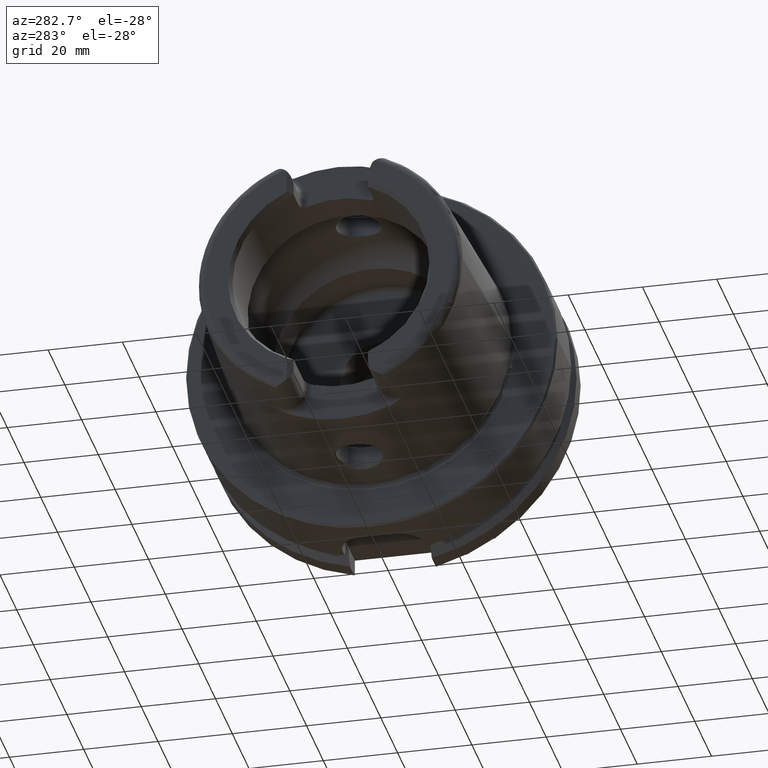
[diagram: clean part render]
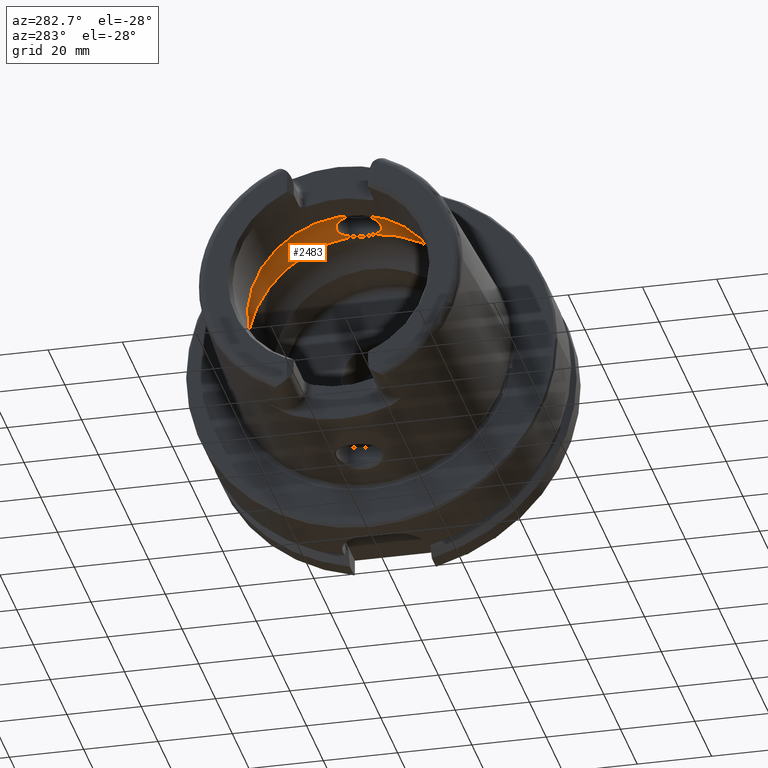
[diagram: same view with one face highlighted and labeled with its STEP entity id]
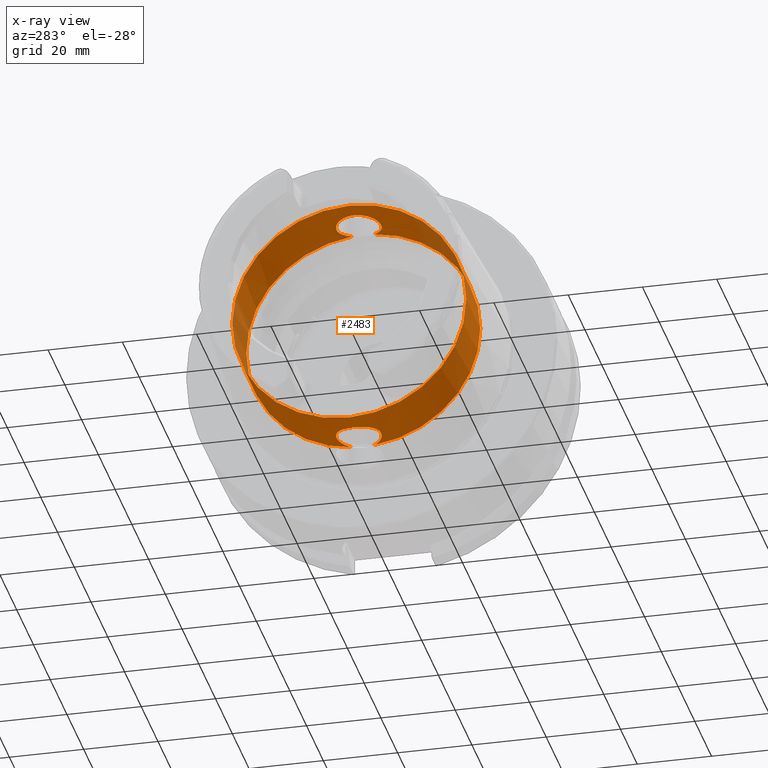
[diagram: x-ray of the same camera — body ghosted, the highlighted face saturated]
A machine part, auxiliary view. The second image highlights one B-rep face of the part: STEP entity #2483.
The next image is the same camera in x-ray: the body ghosted, the highlighted face saturated — about 12% of this face is hidden behind the body in this view.
In plain terms, the highlighted cylindrical surface (bore or boss wall) has radius 31.5 mm, axis along (-1, 0, 0).
Its self-contained STEP definition (entity closure, byte-faithful):
#177=CIRCLE('',#2710,31.5);
#178=CIRCLE('',#2711,31.5);
#179=CIRCLE('',#2712,31.5);
#180=CIRCLE('',#2713,31.5);
#181=CIRCLE('',#2714,31.5);
#469=FACE_OUTER_BOUND('',#613,.T.);
#613=EDGE_LOOP('',(#1940,#1941,#1942,#1943,#1944,#1945,#1946,#1947,#1948));
#746=B_SPLINE_CURVE_WITH_KNOTS('',3,(#4621,#4622,#4623,#4624,#4625,#4626,
#4627,#4628,#4629,#4630,#4631,#4632,#4633,#4634,#4635,#4636,#4637,#4638,
#4639,#4640,#4641,#4642,#4643,#4644,#4645,#4646,#4647,#4648,#4649,#4650,
#4651),.UNSPECIFIED.,.F.,.F.,(4,2,2,2,2,2,2,2,2,2,2,3,2,2,4),(-2.42966289251045,
-2.26609494287567,-2.03948128472637,-1.81286762657707,-1.58625396842777,
-1.35964031027847,-1.1330370617835,-0.906433813288535,-0.679830564793567,
-0.453227316298599,-0.226613658149299,0.,0.2266136581493,0.453227316298599,
0.616795265988555),.UNSPECIFIED.);
#751=B_SPLINE_CURVE_WITH_KNOTS('',3,(#4813,#4814,#4815,#4816,#4817,#4818,
#4819,#4820,#4821,#4822,#4823,#4824,#4825,#4826,#4827,#4828,#4829,#4830,
#4831,#4832,#4833,#4834,#4835,#4836,#4837,#4838,#4839,#4840,#4841,#4842,
#4843),.UNSPECIFIED.,.F.,.F.,(4,2,2,3,2,2,2,2,2,2,2,2,2,2,4),(-0.616795265933374,
-0.453227316298598,-0.226613658149299,0.,0.2266136581493,0.453227316298599,
0.679830564793567,0.906433813288535,1.1330370617835,1.35964031027847,1.58625396842777,
1.81286762657707,2.03948128472637,2.26609494287567,2.42966289256562),
 .UNSPECIFIED.);
#837=LINE('',#4859,#957);
#957=VECTOR('',#3180,31.5);
#1157=VERTEX_POINT('',#4609);
#1158=VERTEX_POINT('',#4620);
#1161=VERTEX_POINT('',#4800);
#1163=VERTEX_POINT('',#4812);
#1164=VERTEX_POINT('',#4856);
#1165=VERTEX_POINT('',#4858);
#1166=VERTEX_POINT('',#4860);
#1445=EDGE_CURVE('',#1158,#1157,#746,.T.);
#1451=EDGE_CURVE('',#1163,#1161,#751,.T.);
#1454=EDGE_CURVE('',#1164,#1161,#177,.T.);
#1455=EDGE_CURVE('',#1164,#1165,#837,.T.);
#1456=EDGE_CURVE('',#1165,#1166,#178,.T.);
#1457=EDGE_CURVE('',#1166,#1165,#179,.T.);
#1458=EDGE_CURVE('',#1158,#1164,#180,.T.);
#1459=EDGE_CURVE('',#1163,#1157,#181,.T.);
#1940=ORIENTED_EDGE('',*,*,#1451,.T.);
#1941=ORIENTED_EDGE('',*,*,#1454,.F.);
#1942=ORIENTED_EDGE('',*,*,#1455,.T.);
#1943=ORIENTED_EDGE('',*,*,#1456,.T.);
#1944=ORIENTED_EDGE('',*,*,#1457,.T.);
#1945=ORIENTED_EDGE('',*,*,#1455,.F.);
#1946=ORIENTED_EDGE('',*,*,#1458,.F.);
#1947=ORIENTED_EDGE('',*,*,#1445,.T.);
#1948=ORIENTED_EDGE('',*,*,#1459,.F.);
#2410=CYLINDRICAL_SURFACE('',#2709,31.5);
#2483=ADVANCED_FACE('',(#469),#2410,.F.);
#2709=AXIS2_PLACEMENT_3D('',#4855,#3176,#3177);
#2710=AXIS2_PLACEMENT_3D('',#4857,#3178,#3179);
#2711=AXIS2_PLACEMENT_3D('',#4861,#3181,#3182);
#2712=AXIS2_PLACEMENT_3D('',#4862,#3183,#3184);
#2713=AXIS2_PLACEMENT_3D('',#4863,#3185,#3186);
#2714=AXIS2_PLACEMENT_3D('',#4864,#3187,#3188);
#3176=DIRECTION('center_axis',(-1.,0.,0.));
#3177=DIRECTION('ref_axis',(0.,1.,0.));
#3178=DIRECTION('center_axis',(-1.,0.,0.));
#3179=DIRECTION('ref_axis',(0.,0.,1.));
#3180=DIRECTION('',(-1.,0.,0.));
#3181=DIRECTION('center_axis',(-1.,0.,0.));
#3182=DIRECTION('ref_axis',(0.,0.,1.));
#3183=DIRECTION('center_axis',(-1.,0.,0.));
#3184=DIRECTION('ref_axis',(0.,0.,1.));
#3185=DIRECTION('center_axis',(-1.,0.,0.));
#3186=DIRECTION('ref_axis',(0.,0.,1.));
#3187=DIRECTION('center_axis',(-1.,0.,0.));
#3188=DIRECTION('ref_axis',(0.,0.,1.));
#4609=CARTESIAN_POINT('',(-9.74679434480896,2.89893607109041,-31.3663222207471));
#4620=CARTESIAN_POINT('',(-9.74679434480896,-2.89893607109041,-31.3663222207471));
#4621=CARTESIAN_POINT('Ctrl Pts',(-9.74679434480898,-2.8989360710904,-31.3663222207471));
#4622=CARTESIAN_POINT('Ctrl Pts',(-10.0245557799842,-3.40227174537722,-31.3198029657389));
#4623=CARTESIAN_POINT('Ctrl Pts',(-10.3735944692601,-3.85887584349869,-31.2651415110221));
#4624=CARTESIAN_POINT('Ctrl Pts',(-11.289042660848,-4.77432403508655,-31.140708727458));
#4625=CARTESIAN_POINT('Ctrl Pts',(-11.9624834305428,-5.23577180141274,-31.0633803744766));
#4626=CARTESIAN_POINT('Ctrl Pts',(-13.4401908644727,-5.84865855662958,-30.9538382316308));
#4627=CARTESIAN_POINT('Ctrl Pts',(-14.2446211395023,-6.00000000000001,-30.9232921921325));
#4628=CARTESIAN_POINT('Ctrl Pts',(-15.7553788604977,-6.00000000000001,-30.9232921921325));
#4629=CARTESIAN_POINT('Ctrl Pts',(-16.5598091355273,-5.84865855662958,-30.9538382316308));
#4630=CARTESIAN_POINT('Ctrl Pts',(-18.0375165694572,-5.23577180141275,-31.0633803744766));
#4631=CARTESIAN_POINT('Ctrl Pts',(-18.710957339152,-4.77432403508655,-31.140708727458));
#4632=CARTESIAN_POINT('Ctrl Pts',(-19.7742996118461,-3.71098176239249,-31.2852440928545));
#4633=CARTESIAN_POINT('Ctrl Pts',(-20.2357665181958,-3.03753058698362,-31.3619556484746));
#4634=CARTESIAN_POINT('Ctrl Pts',(-20.8486671603361,-1.55978711209124,-31.4700797313679));
#4635=CARTESIAN_POINT('Ctrl Pts',(-21.,-0.755344161649895,-31.5));
#4636=CARTESIAN_POINT('Ctrl Pts',(-21.,0.755344161649892,-31.5));
#4637=CARTESIAN_POINT('Ctrl Pts',(-20.8486671603361,1.55978711209124,-31.4700797313679));
#4638=CARTESIAN_POINT('Ctrl Pts',(-20.2357665181958,3.03753058698362,-31.3619556484746));
#4639=CARTESIAN_POINT('Ctrl Pts',(-19.7742996118461,3.71098176239249,-31.2852440928545));
#4640=CARTESIAN_POINT('Ctrl Pts',(-18.710957339152,4.77432403508655,-31.140708727458));
#4641=CARTESIAN_POINT('Ctrl Pts',(-18.0375165694572,5.23577180141274,-31.0633803744766));
#4642=CARTESIAN_POINT('Ctrl Pts',(-16.5598091355273,5.84865855662958,-30.9538382316308));
#4643=CARTESIAN_POINT('Ctrl Pts',(-15.7553788604977,6.00000000000001,-30.9232921921325));
#4644=CARTESIAN_POINT('Ctrl Pts',(-15.,6.00000000000001,-30.9232921921325));
#4645=CARTESIAN_POINT('Ctrl Pts',(-14.2446211395023,6.00000000000001,-30.9232921921325));
#4646=CARTESIAN_POINT('Ctrl Pts',(-13.4401908644727,5.84865855662958,-30.9538382316308));
#4647=CARTESIAN_POINT('Ctrl Pts',(-11.9624834305428,5.23577180141274,-31.0633803744766));
#4648=CARTESIAN_POINT('Ctrl Pts',(-11.289042660848,4.77432403508655,-31.140708727458));
#4649=CARTESIAN_POINT('Ctrl Pts',(-10.3735944691306,3.85887584336922,-31.2651415110397));
#4650=CARTESIAN_POINT('Ctrl Pts',(-10.0245557801354,3.40227174565105,-31.3198029657135));
#4651=CARTESIAN_POINT('Ctrl Pts',(-9.74679434480898,2.8989360710904,-31.3663222207471));
#4800=CARTESIAN_POINT('',(-9.74679434480896,-2.89893607109042,31.3663222207471));
#4812=CARTESIAN_POINT('',(-9.74679434480896,2.89893607109042,31.3663222207471));
#4813=CARTESIAN_POINT('Ctrl Pts',(-9.74679434480897,2.89893607109041,31.3663222207471));
#4814=CARTESIAN_POINT('Ctrl Pts',(-10.0245557799842,3.40227174537723,31.3198029657389));
#4815=CARTESIAN_POINT('Ctrl Pts',(-10.3735944692601,3.85887584349869,31.2651415110221));
#4816=CARTESIAN_POINT('Ctrl Pts',(-11.289042660848,4.77432403508655,31.140708727458));
#4817=CARTESIAN_POINT('Ctrl Pts',(-11.9624834305428,5.23577180141274,31.0633803744766));
#4818=CARTESIAN_POINT('Ctrl Pts',(-13.4401908644727,5.84865855662958,30.9538382316308));
#4819=CARTESIAN_POINT('Ctrl Pts',(-14.2446211395023,6.00000000000001,30.9232921921325));
#4820=CARTESIAN_POINT('Ctrl Pts',(-15.,6.00000000000001,30.9232921921325));
#4821=CARTESIAN_POINT('Ctrl Pts',(-15.7553788604977,6.00000000000001,30.9232921921325));
#4822=CARTESIAN_POINT('Ctrl Pts',(-16.5598091355273,5.84865855662958,30.9538382316308));
#4823=CARTESIAN_POINT('Ctrl Pts',(-18.0375165694572,5.23577180141274,31.0633803744766));
#4824=CARTESIAN_POINT('Ctrl Pts',(-18.710957339152,4.77432403508655,31.140708727458));
#4825=CARTESIAN_POINT('Ctrl Pts',(-19.7742996118461,3.71098176239249,31.2852440928545));
#4826=CARTESIAN_POINT('Ctrl Pts',(-20.2357665181958,3.03753058698362,31.3619556484746));
#4827=CARTESIAN_POINT('Ctrl Pts',(-20.8486671603361,1.55978711209124,31.4700797313679));
#4828=CARTESIAN_POINT('Ctrl Pts',(-21.,0.755344161649892,31.5));
#4829=CARTESIAN_POINT('Ctrl Pts',(-21.,-0.755344161649894,31.5));
#4830=CARTESIAN_POINT('Ctrl Pts',(-20.8486671603361,-1.55978711209124,31.4700797313679));
#4831=CARTESIAN_POINT('Ctrl Pts',(-20.2357665181958,-3.03753058698362,31.3619556484746));
#4832=CARTESIAN_POINT('Ctrl Pts',(-19.7742996118461,-3.71098176239249,31.2852440928545));
#4833=CARTESIAN_POINT('Ctrl Pts',(-18.710957339152,-4.77432403508655,31.140708727458));
#4834=CARTESIAN_POINT('Ctrl Pts',(-18.0375165694572,-5.23577180141274,31.0633803744766));
#4835=CARTESIAN_POINT('Ctrl Pts',(-16.5598091355273,-5.84865855662958,30.9538382316308));
#4836=CARTESIAN_POINT('Ctrl Pts',(-15.7553788604977,-6.00000000000001,30.9232921921325));
#4837=CARTESIAN_POINT('Ctrl Pts',(-14.2446211395023,-6.00000000000001,30.9232921921325));
#4838=CARTESIAN_POINT('Ctrl Pts',(-13.4401908644727,-5.84865855662958,30.9538382316308));
#4839=CARTESIAN_POINT('Ctrl Pts',(-11.9624834305428,-5.23577180141274,31.0633803744766));
#4840=CARTESIAN_POINT('Ctrl Pts',(-11.289042660848,-4.77432403508655,31.140708727458));
#4841=CARTESIAN_POINT('Ctrl Pts',(-10.3735944691306,-3.85887584336922,31.2651415110397));
#4842=CARTESIAN_POINT('Ctrl Pts',(-10.0245557801353,-3.40227174565106,31.3198029657135));
#4843=CARTESIAN_POINT('Ctrl Pts',(-9.74679434480897,-2.89893607109041,31.3663222207471));
#4855=CARTESIAN_POINT('Origin',(-18.1430342013226,0.,0.));
#4856=CARTESIAN_POINT('',(-9.74679434480896,-31.5,3.85763741731416E-15));
#4857=CARTESIAN_POINT('Origin',(-9.74679434480896,0.,0.));
#4858=CARTESIAN_POINT('',(-26.5392740578363,-31.5,3.85763741731416E-15));
#4859=CARTESIAN_POINT('',(-18.1430342013226,-31.5,3.85763741731416E-15));
#4860=CARTESIAN_POINT('',(-26.5392740578363,-3.85763741731416E-15,-31.5));
#4861=CARTESIAN_POINT('Origin',(-26.5392740578363,0.,0.));
#4862=CARTESIAN_POINT('Origin',(-26.5392740578363,0.,0.));
#4863=CARTESIAN_POINT('Origin',(-9.74679434480896,0.,0.));
#4864=CARTESIAN_POINT('Origin',(-9.74679434480896,0.,0.));